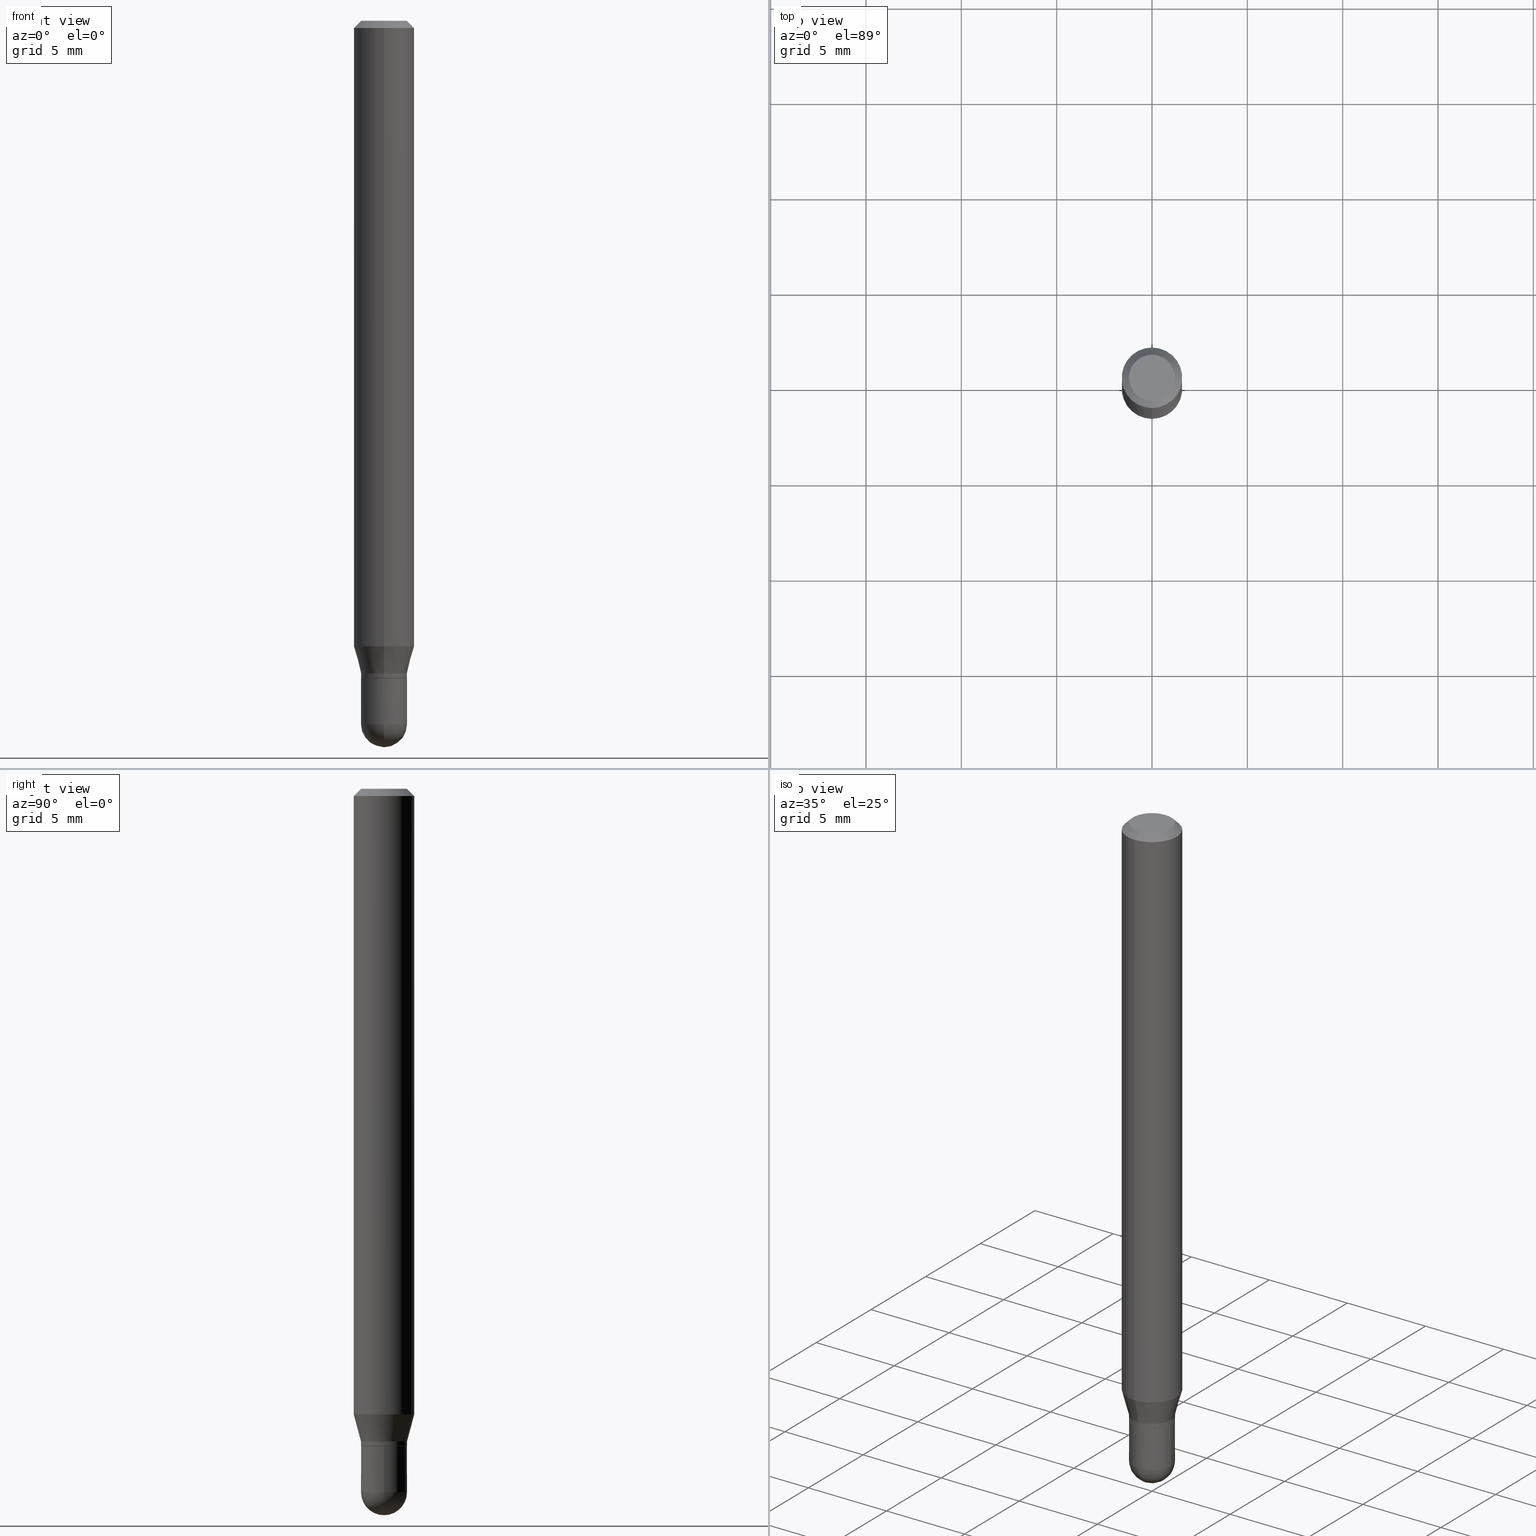
[diagram: canonical four-view strip — front | top / right | iso, engineering-drawing reading convention]
A machine part, canonical four-view strip (front | top / right | iso — engineering-drawing reading convention). The complete STEP part file that produces these views, byte-faithful:
ISO-10303-21;
HEADER;
FILE_DESCRIPTION (( 'STEP AP203' ),
    '1' );
FILE_NAME ('01427.STEP',
    '2024-03-07T20:43:54',
    ( '' ),
    ( '' ),
    'SwSTEP 2.0',
    'SolidWorks 2023',
    '' );
FILE_SCHEMA (( 'CONFIG_CONTROL_DESIGN' ));
ENDSEC;

DATA;
#1 = CARTESIAN_POINT ( 'NONE',  ( 3.295301041412783780E-29, -4.704725528767627537E-15, -1.347500000000000364 ) ) ;
#2 = EDGE_CURVE ( 'NONE', #61, #16, #11, .T. ) ;
#3 = SPHERICAL_SURFACE ( 'NONE', #83, 0.04750000000000012546 ) ;
#4 = DIRECTION ( 'NONE',  ( 2.445492424054012945E-29, -3.491447516710668952E-15, -1.000000000000000000 ) ) ;
#5 = DIRECTION ( 'NONE',  ( -1.000000000000000000, 6.982962677686265922E-15, -4.876176775795935793E-29 ) ) ;
#6 = DIRECTION ( 'NONE',  ( -2.445492424054012945E-29, 3.491447516710668952E-15, 1.000000000000000000 ) ) ;
#7 = EDGE_CURVE ( 'NONE', #220, #444, #39, .T. ) ;
#8 = DIRECTION ( 'NONE',  ( 6.982962677686265922E-15, 1.000000000000000000, -3.483106191921935554E-15 ) ) ;
#9 = CARTESIAN_POINT ( 'NONE',  ( 3.552043440983912297E-29, -5.071376644669670605E-15, -1.452500000000000346 ) ) ;
#10 = DIRECTION ( 'NONE',  ( 2.445492424054012665E-29, -3.491447516710668952E-15, -1.000000000000000000 ) ) ;
#11 = CIRCLE ( 'NONE', #476, 0.04749999999999991729 ) ;
#12 = DIRECTION ( 'NONE',  ( 2.445492424054012945E-29, -3.491447516710668952E-15, -1.000000000000000000 ) ) ;
#13 = CARTESIAN_POINT ( 'NONE',  ( -3.316907271900641323E-16, -0.04750000000000462186, -1.347500000000000142 ) ) ;
#14 = APPLICATION_PROTOCOL_DEFINITION ( 'international standard', 'config_control_design', 1994, #412 ) ;
#15 = CARTESIAN_POINT ( 'NONE',  ( 3.662110149467302662E-29, -5.245947616708644728E-15, -1.500000000000000444 ) ) ;
#16 = VERTEX_POINT ( 'NONE', #502 ) ;
#17 = LINE ( 'NONE', #177, #156 ) ;
#18 = VERTEX_POINT ( 'NONE', #102 ) ;
#19 = CARTESIAN_POINT ( 'NONE',  ( 3.319755965653323105E-29, -4.739640003934733907E-15, -1.357500000000000151 ) ) ;
#20 = AXIS2_PLACEMENT_3D ( 'NONE', #221, #213, #100 ) ;
#21 = DIRECTION ( 'NONE',  ( -2.445492424054012945E-29, 3.491447516710668952E-15, 1.000000000000000000 ) ) ;
#22 = ORIENTED_EDGE ( 'NONE', *, *, #391, .F. ) ;
#23 = VERTEX_POINT ( 'NONE', #147 ) ;
#24 = ORIENTED_EDGE ( 'NONE', *, *, #205, .T. ) ;
#25 = EDGE_CURVE ( 'NONE', #220, #465, #266, .T. ) ;
#26 = APPLICATION_CONTEXT ( 'configuration controlled 3d designs of mechanical parts and assemblies' ) ;
#27 = EDGE_LOOP ( 'NONE', ( #387, #505, #377, #357, #467 ) ) ;
#28 = EDGE_LOOP ( 'NONE', ( #292, #368, #105, #65 ) ) ;
#29 = ORIENTED_EDGE ( 'NONE', *, *, #60, .F. ) ;
#30 = ORIENTED_EDGE ( 'NONE', *, *, #53, .T. ) ;
#31 = CARTESIAN_POINT ( 'NONE',  ( 0.04750000000000000749, -5.237222008264718177E-15, -1.452500000000000346 ) ) ;
#32 = AXIS2_PLACEMENT_3D ( 'NONE', #232, #398, #428 ) ;
#33 = AXIS2_PLACEMENT_3D ( 'NONE', #201, #286, #413 ) ;
#34 = EDGE_CURVE ( 'NONE', #279, #310, #247, .T. ) ;
#35 = CARTESIAN_POINT ( 'NONE',  ( -4.364351673553598192E-16, -0.06250000000000446865, -1.291519237886466831 ) ) ;
#36 = CARTESIAN_POINT ( 'NONE',  ( -4.287811248607203282E-16, -0.06250000000000005551, -0.01499999999999979128 ) ) ;
#37 = CYLINDRICAL_SURFACE ( 'NONE', #488, 0.04749999999999991729 ) ;
#38 = DIRECTION ( 'NONE',  ( -2.445492424054012945E-29, 3.491447516710668952E-15, 1.000000000000000000 ) ) ;
#39 = CIRCLE ( 'NONE', #108, 0.04750000000000000749 ) ;
#40 = VECTOR ( 'NONE', #263, 39.37007874015748143 ) ;
#41 = EDGE_CURVE ( 'NONE', #431, #61, #17, .T. ) ;
#42 = DATE_AND_TIME ( #198, #164 ) ;
#43 = CARTESIAN_POINT ( 'NONE',  ( 3.668238636081021817E-31, -5.237171275066006657E-17, -0.01500000000000000812 ) ) ;
#44 = APPROVAL_STATUS ( 'not_yet_approved' ) ;
#45 = CARTESIAN_POINT ( 'NONE',  ( 3.547981401110308940E-29, -5.077193716965619798E-15, -1.452500000000000124 ) ) ;
#46 = ADVANCED_FACE ( 'NONE', ( #500 ), #433, .T. ) ;
#47 = AXIS2_PLACEMENT_3D ( 'NONE', #9, #341, #188 ) ;
#48 = DIRECTION ( 'NONE',  ( -2.445492424054012945E-29, 3.491447516710668952E-15, 1.000000000000000000 ) ) ;
#49 = FACE_OUTER_BOUND ( 'NONE', #325, .T. ) ;
#50 = DIMENSIONAL_EXPONENTS ( 1.000000000000000000, 0.000000000000000000, 0.000000000000000000, 0.000000000000000000, 0.000000000000000000, 0.000000000000000000, 0.000000000000000000 ) ;
#51 = AXIS2_PLACEMENT_3D ( 'NONE', #71, #38, #237 ) ;
#52 = DIRECTION ( 'NONE',  ( -2.445468806185136597E-29, 3.491481338843145583E-15, 1.000000000000000000 ) ) ;
#53 = EDGE_CURVE ( 'NONE', #23, #465, #234, .T. ) ;
#54 = ORIENTED_EDGE ( 'NONE', *, *, #140, .F. ) ;
#55 = CARTESIAN_POINT ( 'NONE',  ( 3.357314426466801272E-16, 0.04699999999999526085, -1.357500000000000373 ) ) ;
#56 = CARTESIAN_POINT ( 'NONE',  ( 2.167177324553532397E-46, -3.094095002568276244E-32, -8.861926143123746076E-18 ) ) ;
#57 = EDGE_LOOP ( 'NONE', ( #22, #112, #351, #276 ) ) ;
#58 = CARTESIAN_POINT ( 'NONE',  ( 0.04750000000000000749, -3.316907271900977082E-16, 2.316183968503069432E-30 ) ) ;
#59 = ORIENTED_EDGE ( 'NONE', *, *, #401, .T. ) ;
#60 = EDGE_CURVE ( 'NONE', #426, #244, #409, .T. ) ;
#61 = VERTEX_POINT ( 'NONE', #200 ) ;
#62 = LENGTH_MEASURE_WITH_UNIT ( LENGTH_MEASURE( 0.02539999999999999897 ), #495 );
#63 = AXIS2_PLACEMENT_3D ( 'NONE', #1, #159, #161 ) ;
#64 = CYLINDRICAL_SURFACE ( 'NONE', #402, 0.06250000000000000000 ) ;
#65 = ORIENTED_EDGE ( 'NONE', *, *, #283, .F. ) ;
#66 =( CONVERSION_BASED_UNIT ( 'INCH', #62 ) LENGTH_UNIT ( ) NAMED_UNIT ( #50 ) );
#67 = DIRECTION ( 'NONE',  ( 1.000000000000000000, -6.982962677686266711E-15, 4.876176775795934672E-29 ) ) ;
#68 = APPROVAL_DATE_TIME ( #176, #503 ) ;
#69 = EDGE_CURVE ( 'NONE', #426, #310, #194, .T. ) ;
#70 = COORDINATED_UNIVERSAL_TIME_OFFSET ( 5, 0, .BEHIND. ) ;
#71 = CARTESIAN_POINT ( 'NONE',  ( 0.000000000000000000, 0.000000000000000000, 0.000000000000000000 ) ) ;
#72 = CIRCLE ( 'NONE', #192, 0.06250000000000000000 ) ;
#73 = ORIENTED_EDGE ( 'NONE', *, *, #41, .T. ) ;
#74 = APPROVAL_STATUS ( 'not_yet_approved' ) ;
#75 = DIRECTION ( 'NONE',  ( -2.445492424054012945E-29, 3.491447516710668952E-15, 1.000000000000000000 ) ) ;
#76 = DIRECTION ( 'NONE',  ( 5.024295867788190974E-15, 0.7071067811865681119, 0.7071067811865270336 ) ) ;
#77 = CARTESIAN_POINT ( 'NONE',  ( -3.316907271900641323E-16, -0.04750000000000462186, -1.347500000000000142 ) ) ;
#78 = ORIENTED_EDGE ( 'NONE', *, *, #7, .T. ) ;
#79 = EDGE_CURVE ( 'NONE', #154, #424, #338, .T. ) ;
#80 = ORIENTED_EDGE ( 'NONE', *, *, #160, .T. ) ;
#81 = DIRECTION ( 'NONE',  ( -2.445492424054012945E-29, 3.491447516710668952E-15, 1.000000000000000000 ) ) ;
#82 = CONICAL_SURFACE ( 'NONE', #379, 0.04749999999999991729, 0.2617993877991508511 ) ;
#83 = AXIS2_PLACEMENT_3D ( 'NONE', #45, #162, #329 ) ;
#84 = SECURITY_CLASSIFICATION ( '', '', #459 ) ;
#85 = ORIENTED_EDGE ( 'NONE', *, *, #25, .F. ) ;
#86 = CARTESIAN_POINT ( 'NONE',  ( 3.319755965653323105E-29, -4.739640003934733907E-15, -1.357500000000000151 ) ) ;
#87 = CC_DESIGN_DATE_AND_TIME_ASSIGNMENT ( #470, #301, ( #477 ) ) ;
#88 = ORIENTED_EDGE ( 'NONE', *, *, #243, .F. ) ;
#89 = COORDINATED_UNIVERSAL_TIME_OFFSET ( 5, 0, .BEHIND. ) ;
#90 = CYLINDRICAL_SURFACE ( 'NONE', #327, 0.04749999999999991729 ) ;
#91 = AXIS2_PLACEMENT_3D ( 'NONE', #43, #4, #8 ) ;
#92 = CARTESIAN_POINT ( 'NONE',  ( 3.158400511771368099E-29, -4.509271635902760298E-15, -1.291519237886467275 ) ) ;
#93 = ORIENTED_EDGE ( 'NONE', *, *, #283, .T. ) ;
#94 = DESIGN_CONTEXT ( 'detailed design', #412, 'design' ) ;
#95 =( NAMED_UNIT ( * ) SI_UNIT ( $, .STERADIAN. ) SOLID_ANGLE_UNIT ( ) );
#96 = ADVANCED_FACE ( 'NONE', ( #253 ), #90, .T. ) ;
#97 = CARTESIAN_POINT ( 'NONE',  ( 3.319723904396323737E-29, -4.739685917479570727E-15, -1.357500000000000151 ) ) ;
#98 = DIRECTION ( 'NONE',  ( -1.000000000000000000, 6.982962677686265922E-15, -4.883557194083112340E-29 ) ) ;
#99 = VECTOR ( 'NONE', #166, 39.37007874015748143 ) ;
#100 = DIRECTION ( 'NONE',  ( 1.000000000000000000, -6.982962677686260400E-15, 0.000000000000000000 ) ) ;
#101 = AXIS2_PLACEMENT_3D ( 'NONE', #129, #336, #378 ) ;
#102 = CARTESIAN_POINT ( 'NONE',  ( 3.375077994860835347E-16, 0.04749999999999498373, -1.452500000000000790 ) ) ;
#103 = PERSON_AND_ORGANIZATION ( #251, #304 ) ;
#104 = APPROVAL ( #44, 'UNSPECIFIED' ) ;
#105 = ORIENTED_EDGE ( 'NONE', *, *, #471, .F. ) ;
#106 = CARTESIAN_POINT ( 'NONE',  ( 0.000000000000000000, 0.000000000000000000, 0.000000000000000000 ) ) ;
#107 = DIRECTION ( 'NONE',  ( -6.982962677686265922E-15, -1.000000000000000000, 0.000000000000000000 ) ) ;
#108 = AXIS2_PLACEMENT_3D ( 'NONE', #323, #466, #389 ) ;
#109 = CIRCLE ( 'NONE', #381, 0.06250000000000000000 ) ;
#110 = ORIENTED_EDGE ( 'NONE', *, *, #2, .T. ) ;
#111 = ORIENTED_EDGE ( 'NONE', *, *, #348, .T. ) ;
#112 = ORIENTED_EDGE ( 'NONE', *, *, #152, .T. ) ;
#113 = ORIENTED_EDGE ( 'NONE', *, *, #140, .T. ) ;
#114 = CARTESIAN_POINT ( 'NONE',  ( 3.319755965653323105E-29, -4.739640003934733907E-15, -1.357500000000000151 ) ) ;
#115 = DIRECTION ( 'NONE',  ( -6.982962677686266711E-15, -1.000000000000000000, 5.812442539711199378E-15 ) ) ;
#116 = AXIS2_PLACEMENT_3D ( 'NONE', #308, #98, #107 ) ;
#117 = CONICAL_SURFACE ( 'NONE', #63, 0.04749999999999991729, 0.2617993877991508511 ) ;
#118 = CC_DESIGN_APPROVAL ( #104, ( #84 ) ) ;
#119 = CARTESIAN_POINT ( 'NONE',  ( 0.000000000000000000, 0.000000000000000000, 0.000000000000000000 ) ) ;
#120 = DIRECTION ( 'NONE',  ( -6.982962677686265922E-15, -1.000000000000000000, 4.370956789862821150E-15 ) ) ;
#121 = FACE_OUTER_BOUND ( 'NONE', #347, .T. ) ;
#122 = EDGE_CURVE ( 'NONE', #61, #154, #262, .T. ) ;
#123 = PERSON_AND_ORGANIZATION_ROLE ( 'creator' ) ;
#124 = LOCAL_TIME ( 15, 43, 54.00000000000000000, #70 ) ;
#125 = DIRECTION ( 'NONE',  ( -6.982962677686265922E-15, -1.000000000000000000, 5.751258934030037627E-15 ) ) ;
#126 = PERSON_AND_ORGANIZATION ( #251, #304 ) ;
#127 = DIRECTION ( 'NONE',  ( 7.105427357601001070E-15, 1.000000000000000000, 0.000000000000000000 ) ) ;
#128 = LINE ( 'NONE', #294, #40 ) ;
#129 = CARTESIAN_POINT ( 'NONE',  ( 3.295301041412783780E-29, -4.704725528767627537E-15, -1.347500000000000364 ) ) ;
#130 = PERSON_AND_ORGANIZATION ( #251, #304 ) ;
#131 = DIRECTION ( 'NONE',  ( 1.839019923739603865E-15, 0.2588190451025254579, 0.9659258262890669799 ) ) ;
#132 = EDGE_CURVE ( 'NONE', #210, #18, #240, .T. ) ;
#133 = CARTESIAN_POINT ( 'NONE',  ( -3.316907271900970672E-16, -0.04749999999999991729, 1.658437570437565149E-16 ) ) ;
#134 = MANIFOLD_SOLID_BREP ( 'Body-Move/Copy2[1]', #472 ) ;
#135 = FACE_OUTER_BOUND ( 'NONE', #219, .T. ) ;
#136 = DIRECTION ( 'NONE',  ( 1.000000000000000000, 0.000000000000000000, 0.000000000000000000 ) ) ;
#137 = DIRECTION ( 'NONE',  ( -6.982962677686266711E-15, -1.000000000000000000, 3.491447516710669740E-15 ) ) ;
#138 = ORIENTED_EDGE ( 'NONE', *, *, #34, .T. ) ;
#139 = LOCAL_TIME ( 15, 43, 54.00000000000000000, #89 ) ;
#140 = EDGE_CURVE ( 'NONE', #424, #235, #284, .T. ) ;
#141 = EDGE_LOOP ( 'NONE', ( #384, #80, #463, #455 ) ) ;
#142 = DATE_TIME_ROLE ( 'classification_date' ) ;
#143 = DIRECTION ( 'NONE',  ( -6.982962677686266711E-15, -1.000000000000000000, 5.812442539711199378E-15 ) ) ;
#144 = CARTESIAN_POINT ( 'NONE',  ( -0.04750000000000000749, 3.375077994860476415E-16, -2.336494167871080260E-30 ) ) ;
#145 = ORIENTED_EDGE ( 'NONE', *, *, #451, .F. ) ;
#146 = EDGE_LOOP ( 'NONE', ( #437, #59, #373, #306 ) ) ;
#147 = CARTESIAN_POINT ( 'NONE',  ( 0.04749999999999999362, -5.071376644669668238E-15, -1.357500000000000151 ) ) ;
#148 = CIRCLE ( 'NONE', #116, 0.04750000000000012546 ) ;
#149 = EDGE_LOOP ( 'NONE', ( #110, #354, #145, #180 ) ) ;
#150 = AXIS2_PLACEMENT_3D ( 'NONE', #119, #512, #246 ) ;
#151 = EDGE_LOOP ( 'NONE', ( #462, #174, #54, #268 ) ) ;
#152 = EDGE_CURVE ( 'NONE', #16, #61, #312, .T. ) ;
#153 = EDGE_LOOP ( 'NONE', ( #113, #395, #315, #460 ) ) ;
#154 = VERTEX_POINT ( 'NONE', #77 ) ;
#155 = LINE ( 'NONE', #473, #211 ) ;
#156 = VECTOR ( 'NONE', #183, 39.37007874015748143 ) ;
#157 = ADVANCED_FACE ( 'NONE', ( #195 ), #82, .T. ) ;
#158 = AXIS2_PLACEMENT_3D ( 'NONE', #318, #475, #115 ) ;
#159 = DIRECTION ( 'NONE',  ( -2.445492424054012945E-29, 3.491447516710668952E-15, 1.000000000000000000 ) ) ;
#160 = EDGE_CURVE ( 'NONE', #396, #16, #155, .T. ) ;
#161 = DIRECTION ( 'NONE',  ( -6.982962677686265922E-15, -1.000000000000000000, 5.751258934030037627E-15 ) ) ;
#162 = DIRECTION ( 'NONE',  ( 1.000000000000000000, -6.982962677686265922E-15, 4.883557194083112901E-29 ) ) ;
#163 = CIRCLE ( 'NONE', #158, 0.04699999999999999317 ) ;
#164 = LOCAL_TIME ( 15, 43, 54.00000000000000000, #447 ) ;
#165 = PERSON_AND_ORGANIZATION_ROLE ( 'design_owner' ) ;
#166 = DIRECTION ( 'NONE',  ( -2.445492424054012945E-29, 3.491447516710668952E-15, 1.000000000000000000 ) ) ;
#167 = EDGE_CURVE ( 'NONE', #501, #235, #239, .T. ) ;
#168 = CARTESIAN_POINT ( 'NONE',  ( 0.000000000000000000, 0.000000000000000000, 0.000000000000000000 ) ) ;
#169 = AXIS2_PLACEMENT_3D ( 'NONE', #19, #458, #392 ) ;
#170 = LINE ( 'NONE', #420, #456 ) ;
#171 = CARTESIAN_POINT ( 'NONE',  ( 3.547981401110308940E-29, -5.077193716965619798E-15, -1.452500000000000124 ) ) ;
#172 = DIRECTION ( 'NONE',  ( -6.982962677686265922E-15, -1.000000000000000000, 3.483106191921935554E-15 ) ) ;
#173 = DIRECTION ( 'NONE',  ( -6.982962677686265922E-15, -1.000000000000000000, 3.483106191921935554E-15 ) ) ;
#174 = ORIENTED_EDGE ( 'NONE', *, *, #167, .T. ) ;
#175 = EDGE_CURVE ( 'NONE', #210, #444, #148, .T. ) ;
#176 = DATE_AND_TIME ( #509, #264 ) ;
#177 = CARTESIAN_POINT ( 'NONE',  ( -3.281992458512213224E-16, -0.04700000000000473244, -1.357499999999999929 ) ) ;
#178 = ORIENTED_EDGE ( 'NONE', *, *, #231, .T. ) ;
#179 = VECTOR ( 'NONE', #374, 39.37007874015748143 ) ;
#180 = ORIENTED_EDGE ( 'NONE', *, *, #122, .F. ) ;
#181 = AXIS2_PLACEMENT_3D ( 'NONE', #97, #487, #256 ) ;
#182 = CARTESIAN_POINT ( 'NONE',  ( 3.552043440983912297E-29, -5.071376644669670605E-15, -1.452500000000000346 ) ) ;
#183 = DIRECTION ( 'NONE',  ( -4.937700262164674260E-15, -0.7071067811865632269, 0.7071067811865319186 ) ) ;
#184 = PRODUCT_DEFINITION_FORMATION_WITH_SPECIFIED_SOURCE ( 'ANY', '', #297, .NOT_KNOWN. ) ;
#185 = PERSON_AND_ORGANIZATION ( #251, #304 ) ;
#186 = EDGE_LOOP ( 'NONE', ( #30, #282 ) ) ;
#187 = CARTESIAN_POINT ( 'NONE',  ( 3.318533219441296447E-29, -4.737894280176378431E-15, -1.357000000000000206 ) ) ;
#188 = DIRECTION ( 'NONE',  ( 1.000000000000000000, -6.982962677686260400E-15, 0.000000000000000000 ) ) ;
#189 = ADVANCED_FACE ( 'NONE', ( #480 ), #363, .T. ) ;
#190 = DIRECTION ( 'NONE',  ( -6.982962677686265922E-15, -1.000000000000000000, 4.370956789862821150E-15 ) ) ;
#191 = EDGE_LOOP ( 'NONE', ( #85, #78, #93, #24, #486 ) ) ;
#192 = AXIS2_PLACEMENT_3D ( 'NONE', #218, #75, #120 ) ;
#193 = CALENDAR_DATE ( 2024, 7, 3 ) ;
#194 = LINE ( 'NONE', #36, #179 ) ;
#195 = FACE_OUTER_BOUND ( 'NONE', #151, .T. ) ;
#196 = CC_DESIGN_DATE_AND_TIME_ASSIGNMENT ( #499, #142, ( #84 ) ) ;
#197 = CARTESIAN_POINT ( 'NONE',  ( 0.000000000000000000, 0.000000000000000000, 0.000000000000000000 ) ) ;
#198 = CALENDAR_DATE ( 2024, 7, 3 ) ;
#199 = VECTOR ( 'NONE', #208, 39.37007874015748143 ) ;
#200 = CARTESIAN_POINT ( 'NONE',  ( -3.316907271900631462E-16, -0.04750000000000454553, -1.356999999999999984 ) ) ;
#201 = CARTESIAN_POINT ( 'NONE',  ( 3.547981401110308940E-29, -5.077193716965619798E-15, -1.452500000000000124 ) ) ;
#202 = APPROVAL_DATE_TIME ( #42, #104 ) ;
#203 = DIRECTION ( 'NONE',  ( -6.982962677686266711E-15, -1.000000000000000000, 5.812442539711199378E-15 ) ) ;
#204 = CARTESIAN_POINT ( 'NONE',  ( 4.440892098500943678E-16, 0.06249999999999995837, -0.01500000000000022669 ) ) ;
#205 = EDGE_CURVE ( 'NONE', #287, #23, #429, .T. ) ;
#206 = FACE_OUTER_BOUND ( 'NONE', #186, .T. ) ;
#207 = EDGE_LOOP ( 'NONE', ( #481, #225, #73, #311 ) ) ;
#208 = DIRECTION ( 'NONE',  ( 4.937700262164548042E-15, 0.7071067811865451302, -0.7071067811865499042 ) ) ;
#209 = ADVANCED_FACE ( 'NONE', ( #423 ), #64, .T. ) ;
#210 = VERTEX_POINT ( 'NONE', #15 ) ;
#211 = VECTOR ( 'NONE', #76, 39.37007874015748143 ) ;
#212 =( GEOMETRIC_REPRESENTATION_CONTEXT ( 3 ) GLOBAL_UNCERTAINTY_ASSIGNED_CONTEXT ( ( #375 ) ) GLOBAL_UNIT_ASSIGNED_CONTEXT ( ( #66, #453, #95 ) ) REPRESENTATION_CONTEXT ( 'NONE', 'WORKASPACE' ) );
#213 = DIRECTION ( 'NONE',  ( -2.445468806185136597E-29, 3.491481338843145583E-15, 1.000000000000000000 ) ) ;
#214 = DIRECTION ( 'NONE',  ( -2.445492424054012945E-29, 3.491447516710668952E-15, 1.000000000000000000 ) ) ;
#215 = APPROVAL_PERSON_ORGANIZATION ( #185, #104, #248 ) ;
#216 = SHAPE_DEFINITION_REPRESENTATION ( #255, #289 ) ;
#217 = CARTESIAN_POINT ( 'NONE',  ( 0.000000000000000000, 0.000000000000000000, 0.000000000000000000 ) ) ;
#218 = CARTESIAN_POINT ( 'NONE',  ( 3.158400511771368099E-29, -4.509271635902760298E-15, -1.291519237886467275 ) ) ;
#219 = EDGE_LOOP ( 'NONE', ( #418, #270 ) ) ;
#220 = VERTEX_POINT ( 'NONE', #224 ) ;
#221 = CARTESIAN_POINT ( 'NONE',  ( 3.552043440983912297E-29, -5.071376644669670605E-15, -1.452500000000000346 ) ) ;
#222 = PERSON_AND_ORGANIZATION_ROLE ( 'classification_officer' ) ;
#223 = DIRECTION ( 'NONE',  ( -2.445492424054012945E-29, 3.491447516710668952E-15, 1.000000000000000000 ) ) ;
#224 = CARTESIAN_POINT ( 'NONE',  ( -0.04750000000000000749, -4.568023481588573961E-15, -1.452500000000000346 ) ) ;
#225 = ORIENTED_EDGE ( 'NONE', *, *, #309, .T. ) ;
#226 = AXIS2_PLACEMENT_3D ( 'NONE', #346, #319, #404 ) ;
#227 = AXIS2_PLACEMENT_3D ( 'NONE', #114, #324, #143 ) ;
#228 = ORIENTED_EDGE ( 'NONE', *, *, #243, .T. ) ;
#229 = CARTESIAN_POINT ( 'NONE',  ( 3.668238636081021817E-31, -5.237171275066006657E-17, -0.01500000000000000812 ) ) ;
#230 = CC_DESIGN_APPROVAL ( #414, ( #477 ) ) ;
#231 = EDGE_CURVE ( 'NONE', #310, #279, #109, .T. ) ;
#232 = CARTESIAN_POINT ( 'NONE',  ( 3.319723904396323737E-29, -4.739685917479570727E-15, -1.357500000000000151 ) ) ;
#233 = ORIENTED_EDGE ( 'NONE', *, *, #309, .F. ) ;
#234 = CIRCLE ( 'NONE', #32, 0.04749999999999999362 ) ;
#235 = VERTEX_POINT ( 'NONE', #342 ) ;
#236 = AXIS2_PLACEMENT_3D ( 'NONE', #168, #382, #136 ) ;
#237 = DIRECTION ( 'NONE',  ( -6.982962677686265922E-15, -1.000000000000000000, 3.491447516710668952E-15 ) ) ;
#238 = ADVANCED_FACE ( 'NONE', ( #121 ), #360, .T. ) ;
#239 = LINE ( 'NONE', #333, #344 ) ;
#240 = CIRCLE ( 'NONE', #496, 0.04750000000000012546 ) ;
#241 = CIRCLE ( 'NONE', #181, 0.04749999999999999362 ) ;
#242 = FACE_OUTER_BOUND ( 'NONE', #141, .T. ) ;
#243 = EDGE_CURVE ( 'NONE', #244, #279, #400, .T. ) ;
#244 = VERTEX_POINT ( 'NONE', #493 ) ;
#245 = CARTESIAN_POINT ( 'NONE',  ( 0.000000000000000000, 0.000000000000000000, 0.000000000000000000 ) ) ;
#246 = DIRECTION ( 'NONE',  ( 1.000000000000000000, -6.982962677686266711E-15, 4.876176775795934672E-29 ) ) ;
#247 = CIRCLE ( 'NONE', #260, 0.06250000000000000000 ) ;
#248 = APPROVAL_ROLE ( '' ) ;
#249 = CIRCLE ( 'NONE', #20, 0.04750000000000000749 ) ;
#250 = MECHANICAL_CONTEXT ( 'NONE', #26, 'mechanical' ) ;
#251 = PERSON ( 'UNSPECIFIED', 'UNSPECIFIED', 'UNSPECIFIED', ('UNSPECIFIED'), ('UNSPECIFIED'), ('UNSPECIFIED') ) ;
#252 = EDGE_CURVE ( 'NONE', #431, #396, #478, .T. ) ;
#253 = FACE_OUTER_BOUND ( 'NONE', #57, .T. ) ;
#254 = CC_DESIGN_SECURITY_CLASSIFICATION ( #84, ( #184 ) ) ;
#255 = PRODUCT_DEFINITION_SHAPE ( 'NONE', 'NONE',  #477 ) ;
#256 = DIRECTION ( 'NONE',  ( 1.000000000000000000, -6.982962677686261977E-15, 0.000000000000000000 ) ) ;
#257 = CARTESIAN_POINT ( 'NONE',  ( -0.04749999999999999362, -4.568023481588573961E-15, -1.357500000000000151 ) ) ;
#258 = EDGE_CURVE ( 'NONE', #424, #310, #461, .T. ) ;
#259 = APPROVAL_ROLE ( '' ) ;
#260 = AXIS2_PLACEMENT_3D ( 'NONE', #436, #223, #172 ) ;
#261 = ORIENTED_EDGE ( 'NONE', *, *, #380, .F. ) ;
#262 = LINE ( 'NONE', #133, #99 ) ;
#263 = DIRECTION ( 'NONE',  ( -2.445492424054012945E-29, 3.491447516710668952E-15, 1.000000000000000000 ) ) ;
#264 = LOCAL_TIME ( 15, 43, 54.00000000000000000, #405 ) ;
#265 = APPROVAL_ROLE ( '' ) ;
#266 = LINE ( 'NONE', #144, #416 ) ;
#267 = DIRECTION ( 'NONE',  ( -2.445492424054012945E-29, 3.491447516710668952E-15, 1.000000000000000000 ) ) ;
#268 = ORIENTED_EDGE ( 'NONE', *, *, #79, .F. ) ;
#269 = ORIENTED_EDGE ( 'NONE', *, *, #69, .T. ) ;
#270 = ORIENTED_EDGE ( 'NONE', *, *, #60, .T. ) ;
#271 = DIRECTION ( 'NONE',  ( -6.982962677686266711E-15, -1.000000000000000000, 3.491447516710669740E-15 ) ) ;
#272 = EDGE_LOOP ( 'NONE', ( #468, #397, #228, #138 ) ) ;
#273 = CARTESIAN_POINT ( 'NONE',  ( -4.364351673553916201E-16, -0.06250000000000000000, 2.182154697944168095E-16 ) ) ;
#274 = CC_DESIGN_PERSON_AND_ORGANIZATION_ASSIGNMENT ( #365, #123, ( #184 ) ) ;
#275 = AXIS2_PLACEMENT_3D ( 'NONE', #326, #479, #125 ) ;
#276 = ORIENTED_EDGE ( 'NONE', *, *, #348, .F. ) ;
#277 = APPROVAL_PERSON_ORGANIZATION ( #388, #503, #265 ) ;
#278 = ORIENTED_EDGE ( 'NONE', *, *, #401, .F. ) ;
#279 = VERTEX_POINT ( 'NONE', #204 ) ;
#280 = PRODUCT_RELATED_PRODUCT_CATEGORY ( 'detail', '', ( #297 ) ) ;
#281 = DIRECTION ( 'NONE',  ( -2.445468806185136877E-29, 3.491481338843145188E-15, 1.000000000000000000 ) ) ;
#282 = ORIENTED_EDGE ( 'NONE', *, *, #366, .T. ) ;
#283 = EDGE_CURVE ( 'NONE', #444, #287, #364, .T. ) ;
#284 = CIRCLE ( 'NONE', #320, 0.06250000000000000000 ) ;
#285 = CARTESIAN_POINT ( 'NONE',  ( -4.364351673553912750E-16, -0.06250000000000005551, -0.01499999999999979128 ) ) ;
#286 = DIRECTION ( 'NONE',  ( 1.000000000000000000, -6.982962677686265922E-15, 4.883557194083112901E-29 ) ) ;
#287 = VERTEX_POINT ( 'NONE', #31 ) ;
#288 = DIRECTION ( 'NONE',  ( -6.982962677686265922E-15, -1.000000000000000000, 5.751258934030037627E-15 ) ) ;
#289 = ADVANCED_BREP_SHAPE_REPRESENTATION ( '01427', ( #134, #307, #236 ), #212 ) ;
#290 = CLOSED_SHELL ( 'NONE', ( #300, #330, #425, #406, #157, #340, #209, #189, #506, #492, #355, #96 ) ) ;
#291 = CONICAL_SURFACE ( 'NONE', #91, 0.06250000000000000000, 0.7853981633974483900 ) ;
#292 = ORIENTED_EDGE ( 'NONE', *, *, #175, .F. ) ;
#293 = CC_DESIGN_PERSON_AND_ORGANIZATION_ASSIGNMENT ( #511, #321, ( #184 ) ) ;
#294 = CARTESIAN_POINT ( 'NONE',  ( 3.375077994860469513E-16, 0.04749999999999991729, -1.658437570437565149E-16 ) ) ;
#295 = CARTESIAN_POINT ( 'NONE',  ( -3.773273898774340269E-16, -0.04749999999999999362, 1.569818309006330338E-16 ) ) ;
#296 = VECTOR ( 'NONE', #498, 39.37007874015748143 ) ;
#297 = PRODUCT ( '01427', '01427', '', ( #250 ) ) ;
#298 = DIRECTION ( 'NONE',  ( -6.982962677686266711E-15, -1.000000000000000000, 5.812442539711199378E-15 ) ) ;
#299 = DIRECTION ( 'NONE',  ( 6.982962677686265922E-15, 1.000000000000000000, -3.491447516710668952E-15 ) ) ;
#300 = ADVANCED_FACE ( 'NONE', ( #403 ), #37, .T. ) ;
#301 = DATE_TIME_ROLE ( 'creation_date' ) ;
#302 = VECTOR ( 'NONE', #385, 39.37007874015748854 ) ;
#303 = ORIENTED_EDGE ( 'NONE', *, *, #167, .F. ) ;
#304 = ORGANIZATION ( 'UNSPECIFIED', 'UNSPECIFIED', '' ) ;
#305 = LOCAL_TIME ( 15, 43, 54.00000000000000000, #393 ) ;
#306 = ORIENTED_EDGE ( 'NONE', *, *, #34, .F. ) ;
#307 = MANIFOLD_SOLID_BREP ( 'Body-Move/Copy2[2]', #290 ) ;
#308 = CARTESIAN_POINT ( 'NONE',  ( 3.547981401110308940E-29, -5.077193716965619798E-15, -1.452500000000000124 ) ) ;
#309 = EDGE_CURVE ( 'NONE', #396, #431, #163, .T. ) ;
#310 = VERTEX_POINT ( 'NONE', #285 ) ;
#311 = ORIENTED_EDGE ( 'NONE', *, *, #152, .F. ) ;
#312 = CIRCLE ( 'NONE', #226, 0.04749999999999991729 ) ;
#313 = AXIS2_PLACEMENT_3D ( 'NONE', #372, #12, #427 ) ;
#314 = ORIENTED_EDGE ( 'NONE', *, *, #175, .T. ) ;
#315 = ORIENTED_EDGE ( 'NONE', *, *, #231, .F. ) ;
#316 = CC_DESIGN_PERSON_AND_ORGANIZATION_ASSIGNMENT ( #441, #407, ( #477 ) ) ;
#317 = ORIENTED_EDGE ( 'NONE', *, *, #79, .T. ) ;
#318 = CARTESIAN_POINT ( 'NONE',  ( 3.319755965653323105E-29, -4.739640003934733907E-15, -1.357500000000000151 ) ) ;
#319 = DIRECTION ( 'NONE',  ( -2.445492424054012945E-29, 3.491447516710668952E-15, 1.000000000000000000 ) ) ;
#320 = AXIS2_PLACEMENT_3D ( 'NONE', #92, #48, #190 ) ;
#321 = PERSON_AND_ORGANIZATION_ROLE ( 'design_supplier' ) ;
#322 = ADVANCED_FACE ( 'NONE', ( #442 ), #362, .T. ) ;
#323 = CARTESIAN_POINT ( 'NONE',  ( 3.552043440983912297E-29, -5.071376644669670605E-15, -1.452500000000000346 ) ) ;
#324 = DIRECTION ( 'NONE',  ( -2.445492424054012945E-29, 3.491447516710668952E-15, 1.000000000000000000 ) ) ;
#325 = EDGE_LOOP ( 'NONE', ( #491, #233 ) ) ;
#326 = CARTESIAN_POINT ( 'NONE',  ( 3.295301041412783780E-29, -4.704725528767627537E-15, -1.347500000000000364 ) ) ;
#327 = AXIS2_PLACEMENT_3D ( 'NONE', #245, #6, #415 ) ;
#328 = CONICAL_SURFACE ( 'NONE', #417, 0.04699999999999999317, 0.7853981633974739252 ) ;
#329 = DIRECTION ( 'NONE',  ( -6.982962677686265922E-15, -1.000000000000000000, 5.751258934030012383E-15 ) ) ;
#330 = ADVANCED_FACE ( 'NONE', ( #242 ), #345, .T. ) ;
#331 = CARTESIAN_POINT ( 'NONE',  ( 3.316907271901307910E-16, 0.04749999999999526129, -1.357500000000000373 ) ) ;
#332 = DATE_AND_TIME ( #371, #139 ) ;
#333 = CARTESIAN_POINT ( 'NONE',  ( 3.375077994860798862E-16, 0.04749999999999521966, -1.347500000000000586 ) ) ;
#334 = DIRECTION ( 'NONE',  ( 1.000000000000000000, -7.105427357601001070E-15, 4.926315508542082329E-29 ) ) ;
#335 = CARTESIAN_POINT ( 'NONE',  ( -3.281992458512213224E-16, -0.04700000000000473244, -1.357499999999999929 ) ) ;
#336 = DIRECTION ( 'NONE',  ( -2.445492424054012945E-29, 3.491447516710668952E-15, 1.000000000000000000 ) ) ;
#337 = CIRCLE ( 'NONE', #101, 0.04749999999999991729 ) ;
#338 = LINE ( 'NONE', #13, #302 ) ;
#339 = PLANE ( 'NONE',  #169 ) ;
#340 = ADVANCED_FACE ( 'NONE', ( #367 ), #117, .T. ) ;
#341 = DIRECTION ( 'NONE',  ( -2.445468806185136597E-29, 3.491481338843145583E-15, 1.000000000000000000 ) ) ;
#342 = CARTESIAN_POINT ( 'NONE',  ( 4.440892098500942692E-16, 0.06249999999999551747, -1.291519237886467497 ) ) ;
#343 = CARTESIAN_POINT ( 'NONE',  ( 3.907985046680871517E-16, 0.04749999999999521966, -1.347500000000000586 ) ) ;
#344 = VECTOR ( 'NONE', #131, 39.37007874015748854 ) ;
#345 = CONICAL_SURFACE ( 'NONE', #497, 0.04699999999999999317, 0.7853981633974739252 ) ;
#346 = CARTESIAN_POINT ( 'NONE',  ( 3.318533219441296447E-29, -4.737894280176378431E-15, -1.357000000000000206 ) ) ;
#347 = EDGE_LOOP ( 'NONE', ( #432, #314, #399, #261 ) ) ;
#348 = EDGE_CURVE ( 'NONE', #501, #154, #430, .T. ) ;
#349 = CALENDAR_DATE ( 2024, 7, 3 ) ;
#350 = CARTESIAN_POINT ( 'NONE',  ( 2.167177324553532397E-46, -3.094095002568276244E-32, -8.861926143123746076E-18 ) ) ;
#351 = ORIENTED_EDGE ( 'NONE', *, *, #122, .T. ) ;
#352 = DIRECTION ( 'NONE',  ( -2.445492424054012945E-29, 3.491447516710668952E-15, 1.000000000000000000 ) ) ;
#353 = DIRECTION ( 'NONE',  ( -2.445492424054012945E-29, 3.491447516710668952E-15, 1.000000000000000000 ) ) ;
#354 = ORIENTED_EDGE ( 'NONE', *, *, #391, .T. ) ;
#355 = ADVANCED_FACE ( 'NONE', ( #489 ), #328, .T. ) ;
#356 = AXIS2_PLACEMENT_3D ( 'NONE', #452, #10, #299 ) ;
#357 = ORIENTED_EDGE ( 'NONE', *, *, #205, .F. ) ;
#358 = CC_DESIGN_APPROVAL ( #503, ( #184 ) ) ;
#359 = DIRECTION ( 'NONE',  ( -2.445492424054012945E-29, 3.491447516710668952E-15, 1.000000000000000000 ) ) ;
#360 = SPHERICAL_SURFACE ( 'NONE', #33, 0.04750000000000012546 ) ;
#361 = DIRECTION ( 'NONE',  ( -2.445492424054012945E-29, 3.491447516710668952E-15, 1.000000000000000000 ) ) ;
#362 = CYLINDRICAL_SURFACE ( 'NONE', #150, 0.04750000000000000749 ) ;
#363 = CONICAL_SURFACE ( 'NONE', #313, 0.06250000000000000000, 0.7853981633974483900 ) ;
#364 = CIRCLE ( 'NONE', #47, 0.04750000000000000749 ) ;
#365 = PERSON_AND_ORGANIZATION ( #251, #304 ) ;
#366 = EDGE_CURVE ( 'NONE', #465, #23, #241, .T. ) ;
#367 = FACE_OUTER_BOUND ( 'NONE', #434, .T. ) ;
#368 = ORIENTED_EDGE ( 'NONE', *, *, #132, .T. ) ;
#369 = CC_DESIGN_PERSON_AND_ORGANIZATION_ASSIGNMENT ( #126, #165, ( #297 ) ) ;
#370 = APPROVAL_PERSON_ORGANIZATION ( #130, #414, #259 ) ;
#371 = CALENDAR_DATE ( 2024, 7, 3 ) ;
#372 = CARTESIAN_POINT ( 'NONE',  ( 3.668238636081021817E-31, -5.237171275066006657E-17, -0.01500000000000000812 ) ) ;
#373 = ORIENTED_EDGE ( 'NONE', *, *, #258, .T. ) ;
#374 = DIRECTION ( 'NONE',  ( -4.851104656540964275E-15, -0.7071067811865500152, -0.7071067811865450192 ) ) ;
#375 = UNCERTAINTY_MEASURE_WITH_UNIT (LENGTH_MEASURE( 1.000000000000000082E-05 ), #66, 'distance_accuracy_value', 'NONE');
#376 = APPLICATION_PROTOCOL_DEFINITION ( 'international standard', 'config_control_design', 1994, #26 ) ;
#377 = ORIENTED_EDGE ( 'NONE', *, *, #53, .F. ) ;
#378 = DIRECTION ( 'NONE',  ( -6.982962677686265922E-15, -1.000000000000000000, 5.751258934030037627E-15 ) ) ;
#379 = AXIS2_PLACEMENT_3D ( 'NONE', #408, #361, #288 ) ;
#380 = EDGE_CURVE ( 'NONE', #18, #220, #249, .T. ) ;
#381 = AXIS2_PLACEMENT_3D ( 'NONE', #229, #21, #173 ) ;
#382 = DIRECTION ( 'NONE',  ( 0.000000000000000000, 0.000000000000000000, 1.000000000000000000 ) ) ;
#383 = DIRECTION ( 'NONE',  ( -2.445492424054012945E-29, 3.491447516710668952E-15, 1.000000000000000000 ) ) ;
#384 = ORIENTED_EDGE ( 'NONE', *, *, #252, .T. ) ;
#385 = DIRECTION ( 'NONE',  ( -1.807323732225333689E-15, -0.2588190451025186856, 0.9659258262890687563 ) ) ;
#386 = DIRECTION ( 'NONE',  ( 1.000000000000000000, -6.982962677686260400E-15, 0.000000000000000000 ) ) ;
#387 = ORIENTED_EDGE ( 'NONE', *, *, #380, .T. ) ;
#388 = PERSON_AND_ORGANIZATION ( #251, #304 ) ;
#389 = DIRECTION ( 'NONE',  ( 1.000000000000000000, -6.982962677686260400E-15, 0.000000000000000000 ) ) ;
#390 = DIRECTION ( 'NONE',  ( -6.982962677686265922E-15, -1.000000000000000000, 3.491447516710668952E-15 ) ) ;
#391 = EDGE_CURVE ( 'NONE', #16, #501, #128, .T. ) ;
#392 = DIRECTION ( 'NONE',  ( -6.982962677686265922E-15, -1.000000000000000000, 3.491447516710668952E-15 ) ) ;
#393 = COORDINATED_UNIVERSAL_TIME_OFFSET ( 5, 0, .BEHIND. ) ;
#394 = AXIS2_PLACEMENT_3D ( 'NONE', #331, #446, #5 ) ;
#395 = ORIENTED_EDGE ( 'NONE', *, *, #485, .T. ) ;
#396 = VERTEX_POINT ( 'NONE', #55 ) ;
#397 = ORIENTED_EDGE ( 'NONE', *, *, #464, .F. ) ;
#398 = DIRECTION ( 'NONE',  ( -2.445468806185136597E-29, 3.491481338843145583E-15, 1.000000000000000000 ) ) ;
#399 = ORIENTED_EDGE ( 'NONE', *, *, #7, .F. ) ;
#400 = LINE ( 'NONE', #449, #199 ) ;
#401 = EDGE_CURVE ( 'NONE', #235, #424, #72, .T. ) ;
#402 = AXIS2_PLACEMENT_3D ( 'NONE', #217, #383, #390 ) ;
#403 = FACE_OUTER_BOUND ( 'NONE', #149, .T. ) ;
#404 = DIRECTION ( 'NONE',  ( -6.982962677686265922E-15, -1.000000000000000000, 5.751258934030037627E-15 ) ) ;
#405 = COORDINATED_UNIVERSAL_TIME_OFFSET ( 5, 0, .BEHIND. ) ;
#406 = ADVANCED_FACE ( 'NONE', ( #469 ), #438, .T. ) ;
#407 = PERSON_AND_ORGANIZATION_ROLE ( 'creator' ) ;
#408 = CARTESIAN_POINT ( 'NONE',  ( 3.295301041412783780E-29, -4.704725528767627537E-15, -1.347500000000000364 ) ) ;
#409 = CIRCLE ( 'NONE', #439, 0.04749999999999999362 ) ;
#410 = AXIS2_PLACEMENT_3D ( 'NONE', #182, #52, #386 ) ;
#411 = EDGE_LOOP ( 'NONE', ( #29, #269, #178, #88 ) ) ;
#412 = APPLICATION_CONTEXT ( 'configuration controlled 3d designs of mechanical parts and assemblies' ) ;
#413 = DIRECTION ( 'NONE',  ( -6.982962677686265922E-15, -1.000000000000000000, 5.751258934030012383E-15 ) ) ;
#414 = APPROVAL ( #448, 'UNSPECIFIED' ) ;
#415 = DIRECTION ( 'NONE',  ( -6.982962677686265922E-15, -1.000000000000000000, 3.491447516710669740E-15 ) ) ;
#416 = VECTOR ( 'NONE', #281, 39.37007874015748143 ) ;
#417 = AXIS2_PLACEMENT_3D ( 'NONE', #454, #457, #298 ) ;
#418 = ORIENTED_EDGE ( 'NONE', *, *, #464, .T. ) ;
#419 = CC_DESIGN_PERSON_AND_ORGANIZATION_ASSIGNMENT ( #103, #222, ( #84 ) ) ;
#420 = CARTESIAN_POINT ( 'NONE',  ( 4.440892098500625669E-16, 0.06250000000000000000, -2.182154697944168095E-16 ) ) ;
#421 = FACE_OUTER_BOUND ( 'NONE', #28, .T. ) ;
#422 = CIRCLE ( 'NONE', #474, 0.04749999999999999362 ) ;
#423 = FACE_OUTER_BOUND ( 'NONE', #146, .T. ) ;
#424 = VERTEX_POINT ( 'NONE', #35 ) ;
#425 = ADVANCED_FACE ( 'NONE', ( #508 ), #291, .T. ) ;
#426 = VERTEX_POINT ( 'NONE', #295 ) ;
#427 = DIRECTION ( 'NONE',  ( 6.982962677686265922E-15, 1.000000000000000000, -3.483106191921935554E-15 ) ) ;
#428 = DIRECTION ( 'NONE',  ( 1.000000000000000000, -6.982962677686261977E-15, 0.000000000000000000 ) ) ;
#429 = LINE ( 'NONE', #58, #296 ) ;
#430 = CIRCLE ( 'NONE', #275, 0.04749999999999991729 ) ;
#431 = VERTEX_POINT ( 'NONE', #335 ) ;
#432 = ORIENTED_EDGE ( 'NONE', *, *, #132, .F. ) ;
#433 = CYLINDRICAL_SURFACE ( 'NONE', #450, 0.04750000000000000749 ) ;
#434 = EDGE_LOOP ( 'NONE', ( #303, #111, #317, #278 ) ) ;
#435 = ADVANCED_FACE ( 'NONE', ( #421 ), #3, .T. ) ;
#436 = CARTESIAN_POINT ( 'NONE',  ( 3.668238636081021817E-31, -5.237171275066006657E-17, -0.01500000000000000812 ) ) ;
#437 = ORIENTED_EDGE ( 'NONE', *, *, #485, .F. ) ;
#438 = CYLINDRICAL_SURFACE ( 'NONE', #51, 0.06250000000000000000 ) ;
#439 = AXIS2_PLACEMENT_3D ( 'NONE', #350, #353, #271 ) ;
#440 = CIRCLE ( 'NONE', #410, 0.04750000000000000749 ) ;
#441 = PERSON_AND_ORGANIZATION ( #251, #304 ) ;
#442 = FACE_OUTER_BOUND ( 'NONE', #191, .T. ) ;
#443 = ADVANCED_FACE ( 'NONE', ( #206 ), #484, .F. ) ;
#444 = VERTEX_POINT ( 'NONE', #482 ) ;
#445 = DIRECTION ( 'NONE',  ( -6.982962677686265922E-15, -1.000000000000000000, 5.751258934030037627E-15 ) ) ;
#446 = DIRECTION ( 'NONE',  ( 2.438088387897960049E-29, -3.491481338843145188E-15, -1.000000000000000000 ) ) ;
#447 = COORDINATED_UNIVERSAL_TIME_OFFSET ( 5, 0, .BEHIND. ) ;
#448 = APPROVAL_STATUS ( 'not_yet_approved' ) ;
#449 = CARTESIAN_POINT ( 'NONE',  ( 4.364351673553919652E-16, 0.06249999999999995143, -0.01500000000000022669 ) ) ;
#450 = AXIS2_PLACEMENT_3D ( 'NONE', #106, #494, #67 ) ;
#451 = EDGE_CURVE ( 'NONE', #154, #501, #337, .T. ) ;
#452 = CARTESIAN_POINT ( 'NONE',  ( 3.316907271900976096E-16, 0.04749999999999999362, -1.702747201153186375E-16 ) ) ;
#453 =( NAMED_UNIT ( * ) PLANE_ANGLE_UNIT ( ) SI_UNIT ( $, .RADIAN. ) );
#454 = CARTESIAN_POINT ( 'NONE',  ( 3.319755965653323105E-29, -4.739640003934733907E-15, -1.357500000000000151 ) ) ;
#455 = ORIENTED_EDGE ( 'NONE', *, *, #41, .F. ) ;
#456 = VECTOR ( 'NONE', #214, 39.37007874015748143 ) ;
#457 = DIRECTION ( 'NONE',  ( -2.445492424054012945E-29, 3.491447516710668952E-15, 1.000000000000000000 ) ) ;
#458 = DIRECTION ( 'NONE',  ( -2.445492424054012665E-29, 3.491447516710668952E-15, 1.000000000000000000 ) ) ;
#459 = SECURITY_CLASSIFICATION_LEVEL ( 'unclassified' ) ;
#460 = ORIENTED_EDGE ( 'NONE', *, *, #258, .F. ) ;
#461 = LINE ( 'NONE', #273, #510 ) ;
#462 = ORIENTED_EDGE ( 'NONE', *, *, #451, .T. ) ;
#463 = ORIENTED_EDGE ( 'NONE', *, *, #2, .F. ) ;
#464 = EDGE_CURVE ( 'NONE', #244, #426, #422, .T. ) ;
#465 = VERTEX_POINT ( 'NONE', #257 ) ;
#466 = DIRECTION ( 'NONE',  ( -2.445468806185136597E-29, 3.491481338843145583E-15, 1.000000000000000000 ) ) ;
#467 = ORIENTED_EDGE ( 'NONE', *, *, #471, .T. ) ;
#468 = ORIENTED_EDGE ( 'NONE', *, *, #69, .F. ) ;
#469 = FACE_OUTER_BOUND ( 'NONE', #153, .T. ) ;
#470 = DATE_AND_TIME ( #193, #124 ) ;
#471 = EDGE_CURVE ( 'NONE', #287, #18, #440, .T. ) ;
#472 = CLOSED_SHELL ( 'NONE', ( #46, #435, #443, #238, #322 ) ) ;
#473 = CARTESIAN_POINT ( 'NONE',  ( 3.339550858072801710E-16, 0.04699999999999526085, -1.357500000000000373 ) ) ;
#474 = AXIS2_PLACEMENT_3D ( 'NONE', #56, #267, #137 ) ;
#475 = DIRECTION ( 'NONE',  ( -2.445492424054012945E-29, 3.491447516710668952E-15, 1.000000000000000000 ) ) ;
#476 = AXIS2_PLACEMENT_3D ( 'NONE', #187, #352, #445 ) ;
#477 = PRODUCT_DEFINITION ( 'UNKNOWN', '', #184, #94 ) ;
#478 = CIRCLE ( 'NONE', #227, 0.04699999999999999317 ) ;
#479 = DIRECTION ( 'NONE',  ( -2.445492424054012945E-29, 3.491447516710668952E-15, 1.000000000000000000 ) ) ;
#480 = FACE_OUTER_BOUND ( 'NONE', #272, .T. ) ;
#481 = ORIENTED_EDGE ( 'NONE', *, *, #160, .F. ) ;
#482 = CARTESIAN_POINT ( 'NONE',  ( -3.316907271900626039E-16, -0.04750000000000514228, -1.452500000000000124 ) ) ;
#483 = APPROVAL_DATE_TIME ( #332, #414 ) ;
#484 = PLANE ( 'NONE',  #394 ) ;
#485 = EDGE_CURVE ( 'NONE', #235, #279, #170, .T. ) ;
#486 = ORIENTED_EDGE ( 'NONE', *, *, #366, .F. ) ;
#487 = DIRECTION ( 'NONE',  ( -2.445468806185136597E-29, 3.491481338843145583E-15, 1.000000000000000000 ) ) ;
#488 = AXIS2_PLACEMENT_3D ( 'NONE', #197, #359, #507 ) ;
#489 = FACE_OUTER_BOUND ( 'NONE', #207, .T. ) ;
#490 = PLANE ( 'NONE',  #356 ) ;
#491 = ORIENTED_EDGE ( 'NONE', *, *, #252, .F. ) ;
#492 = ADVANCED_FACE ( 'NONE', ( #49 ), #339, .F. ) ;
#493 = CARTESIAN_POINT ( 'NONE',  ( 3.840629472727447874E-16, 0.04749999999999999362, -1.747056831868805136E-16 ) ) ;
#494 = DIRECTION ( 'NONE',  ( -2.445468806185136597E-29, 3.491481338843145583E-15, 1.000000000000000000 ) ) ;
#495 =( LENGTH_UNIT ( ) NAMED_UNIT ( * ) SI_UNIT ( $, .METRE. ) );
#496 = AXIS2_PLACEMENT_3D ( 'NONE', #171, #334, #127 ) ;
#497 = AXIS2_PLACEMENT_3D ( 'NONE', #86, #81, #203 ) ;
#498 = DIRECTION ( 'NONE',  ( -2.445468806185136877E-29, 3.491481338843145188E-15, 1.000000000000000000 ) ) ;
#499 = DATE_AND_TIME ( #349, #305 ) ;
#500 = FACE_OUTER_BOUND ( 'NONE', #27, .T. ) ;
#501 = VERTEX_POINT ( 'NONE', #343 ) ;
#502 = CARTESIAN_POINT ( 'NONE',  ( 3.375077994860809216E-16, 0.04749999999999529599, -1.357000000000000650 ) ) ;
#503 = APPROVAL ( #74, 'UNSPECIFIED' ) ;
#504 = DIRECTION ( 'NONE',  ( -2.445492424054012945E-29, 3.491447516710668952E-15, 1.000000000000000000 ) ) ;
#505 = ORIENTED_EDGE ( 'NONE', *, *, #25, .T. ) ;
#506 = ADVANCED_FACE ( 'NONE', ( #135 ), #490, .F. ) ;
#507 = DIRECTION ( 'NONE',  ( -6.982962677686265922E-15, -1.000000000000000000, 3.491447516710669740E-15 ) ) ;
#508 = FACE_OUTER_BOUND ( 'NONE', #411, .T. ) ;
#509 = CALENDAR_DATE ( 2024, 7, 3 ) ;
#510 = VECTOR ( 'NONE', #504, 39.37007874015748143 ) ;
#511 = PERSON_AND_ORGANIZATION ( #251, #304 ) ;
#512 = DIRECTION ( 'NONE',  ( -2.445468806185136597E-29, 3.491481338843145583E-15, 1.000000000000000000 ) ) ;
ENDSEC;
END-ISO-10303-21;
